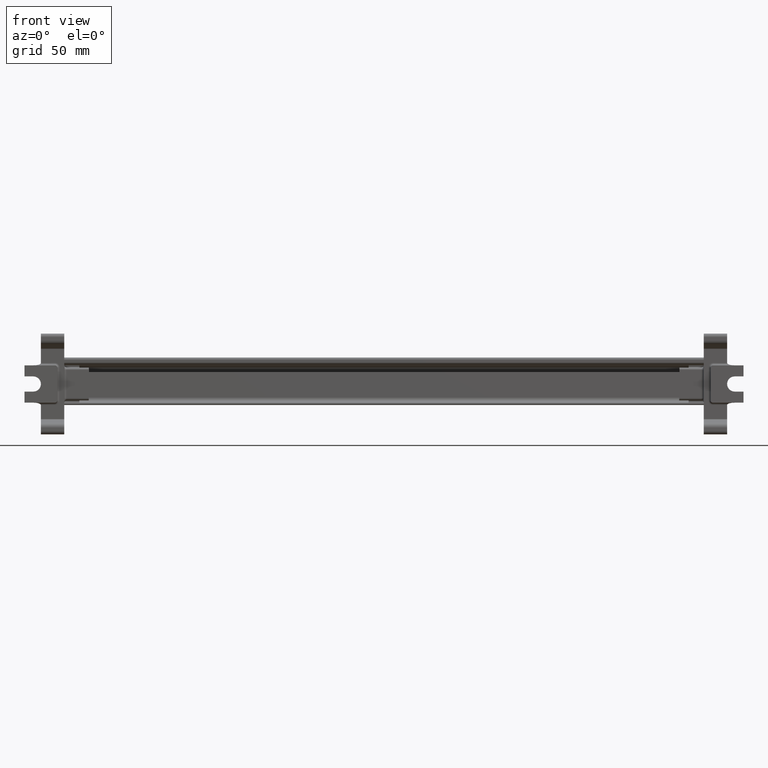
[diagram: clean part render]
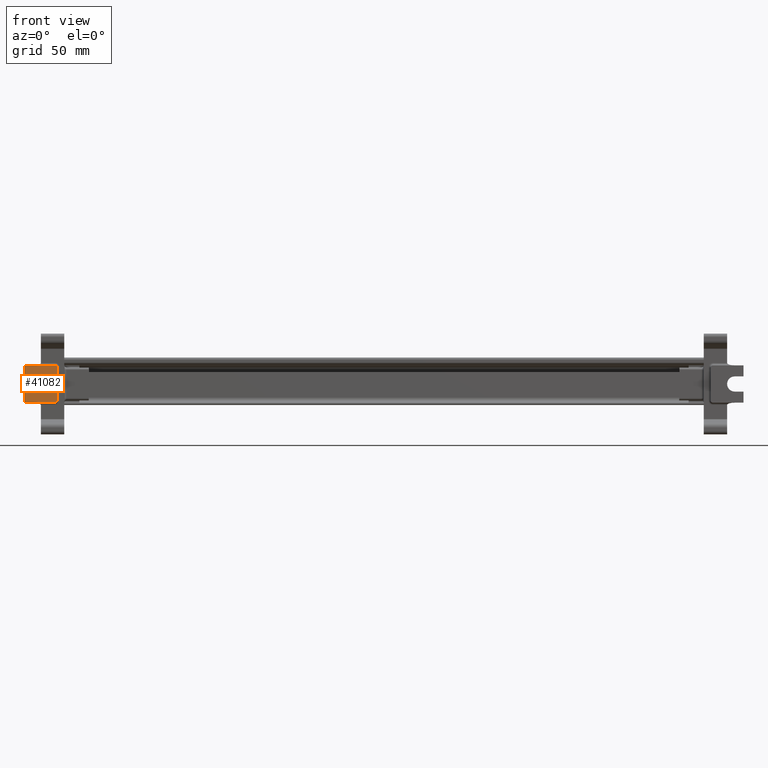
[diagram: same view with one face highlighted and labeled with its STEP entity id]
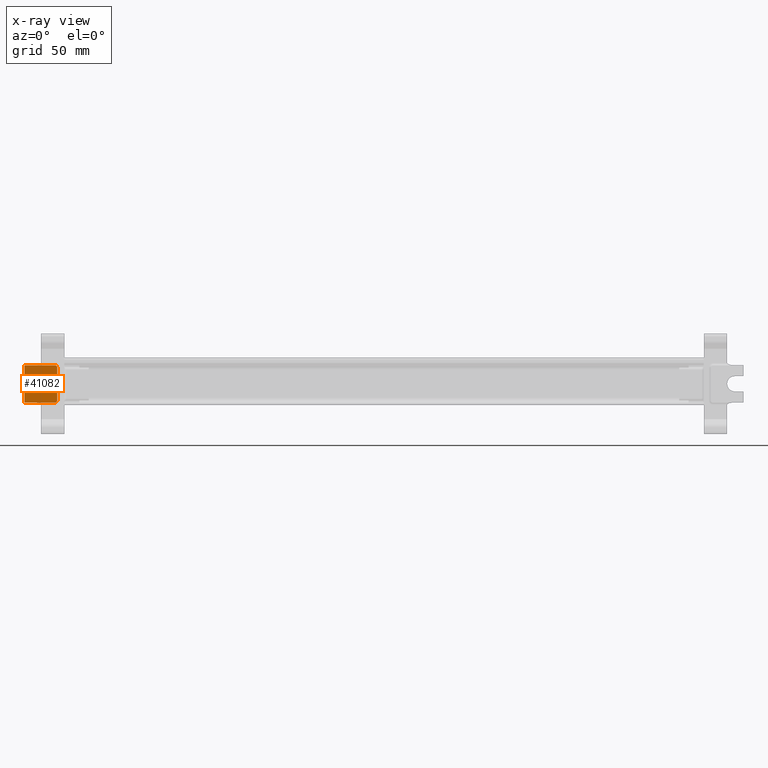
[diagram: x-ray of the same camera — body ghosted, the highlighted face saturated]
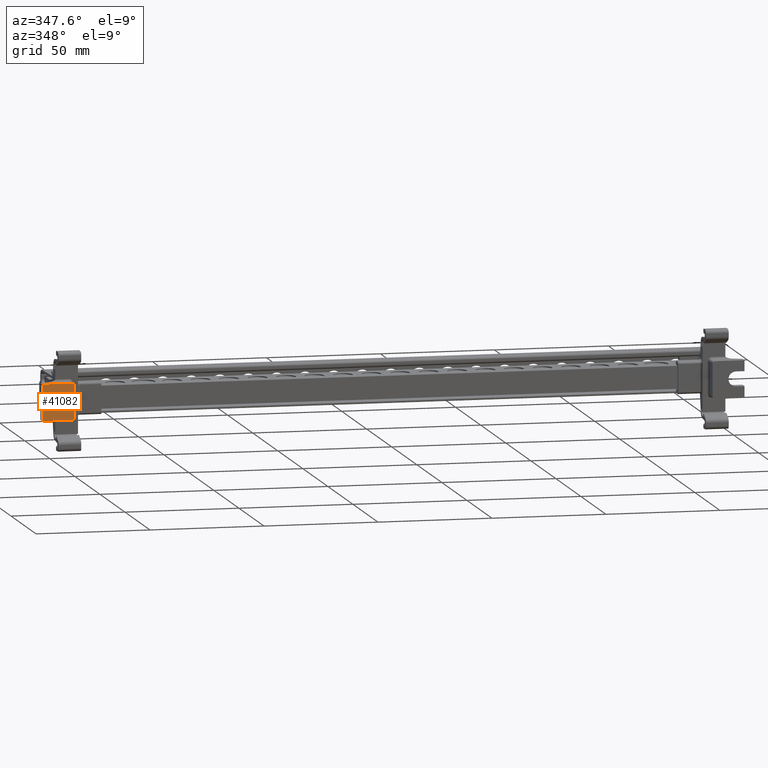
[diagram: same view with one face highlighted and labeled with its STEP entity id]
A machine part, front view. The second image highlights one B-rep face of the part: STEP entity #41082.
The next image is the same camera in x-ray: the body ghosted, the highlighted face saturated — about 0% of this face is hidden behind the body in this view.
A second angle (auxiliary view) of the same face is appended — the face is thin or edge-on in the first view.
In plain terms, the highlighted planar face has unit normal (-0, -1, -0).
Its self-contained STEP definition (entity closure, byte-faithful):
#6001 = VECTOR ( 'NONE', #11090, 1000.000000000000000 ) ;
#6022 = VECTOR ( 'NONE', #10865, 1000.000000000000000 ) ;
#6883 = EDGE_LOOP ( 'NONE', ( #20197, #20144, #20170, #20171, #20130, #20151, #20172, #20148, #20127, #20069, #20161 ) ) ;
#10423 = DIRECTION ( 'NONE',  ( 7.897574987183420400E-015, 1.000000000000000000, 2.740021935547334900E-029 ) ) ;
#10434 = CARTESIAN_POINT ( 'NONE',  ( -222.4602762631160400, 37.74082521647805100, 34.82764998369140100 ) ) ;
#10449 = DIRECTION ( 'NONE',  ( -1.000000000000000000, 6.938893903907222100E-015, 0.0000000000000000000 ) ) ;
#10465 = DIRECTION ( 'NONE',  ( 1.000000000000000000, -7.897574987183420400E-015, 7.022388416726250500E-015 ) ) ;
#10507 = CARTESIAN_POINT ( 'NONE',  ( -242.9526976958242100, 37.74082521647825000, 45.07664888101799500 ) ) ;
#10517 = LINE ( 'NONE', #10434, #28930 ) ;
#10532 = CARTESIAN_POINT ( 'NONE',  ( -222.4602762631161000, 37.74082521647805100, 46.07664888101810200 ) ) ;
#10536 = DIRECTION ( 'NONE',  ( -1.000000000000000000, 8.540177112501270100E-015, 0.0000000000000000000 ) ) ;
#10543 = LINE ( 'NONE', #10545, #28917 ) ;
#10545 = CARTESIAN_POINT ( 'NONE',  ( -222.4602762631161000, 37.74082521647805100, 41.32764998369124500 ) ) ;
#10547 = DIRECTION ( 'NONE',  ( 1.000000000000000000, -7.897574987183420400E-015, 6.325164568388729900E-045 ) ) ;
#10573 = LINE ( 'NONE', #10532, #28910 ) ;
#10600 = DIRECTION ( 'NONE',  ( 7.897574987183420400E-015, 1.000000000000000000, 2.740021935547334900E-029 ) ) ;
#10607 = DIRECTION ( 'NONE',  ( -1.000000000000000000, 7.897574987183420400E-015, -3.511194208363125300E-015 ) ) ;
#10620 = CARTESIAN_POINT ( 'NONE',  ( -252.2026976958242100, 37.74082521647829900, 38.07764998369125200 ) ) ;
#10625 = LINE ( 'NONE', #10634, #29394 ) ;
#10634 = CARTESIAN_POINT ( 'NONE',  ( -241.9526976958243000, 37.74082521647810000, 71.07764998369130200 ) ) ;
#10636 = DIRECTION ( 'NONE',  ( 3.511194208363125300E-015, -2.757782277009340000E-029, -1.000000000000000000 ) ) ;
#10744 = CARTESIAN_POINT ( 'NONE',  ( -242.9526976958242100, 37.74082521647825000, 31.07865108636449800 ) ) ;
#10778 = DIRECTION ( 'NONE',  ( -7.897574987183420400E-015, -1.000000000000000000, 2.709602578543629900E-029 ) ) ;
#10802 = DIRECTION ( 'NONE',  ( -1.000000000000000000, 6.938893903907222100E-015, -6.938893903907222100E-015 ) ) ;
#10838 = LINE ( 'NONE', #10853, #6022 ) ;
#10853 = CARTESIAN_POINT ( 'NONE',  ( -255.9526976958241800, 37.74082521647835600, 30.07865108636445200 ) ) ;
#10865 = DIRECTION ( 'NONE',  ( -3.552941225665730200E-015, 5.515564554018680000E-029, 1.000000000000000000 ) ) ;
#10911 = CARTESIAN_POINT ( 'NONE',  ( -255.9526976958241800, 37.74082521647835600, 46.07664888101800200 ) ) ;
#10932 = DIRECTION ( 'NONE',  ( 3.469447191060520300E-015, 0.0000000000000000000, -1.000000000000000000 ) ) ;
#10935 = LINE ( 'NONE', #10911, #30609 ) ;
#11088 = CARTESIAN_POINT ( 'NONE',  ( -222.4602762631159900, 37.74082521647805100, 30.07865108636455200 ) ) ;
#11090 = DIRECTION ( 'NONE',  ( -1.000000000000000000, 7.897574987183420400E-015, -3.511194208363125300E-015 ) ) ;
#11102 = LINE ( 'NONE', #11088, #6001 ) ;
#11451 = CARTESIAN_POINT ( 'NONE',  ( -222.4602762631161000, 37.74082521647805100, 46.07664888101810200 ) ) ;
#11461 = DIRECTION ( 'NONE',  ( -7.897574987183420400E-015, -1.000000000000000000, -2.740021935547334900E-029 ) ) ;
#11477 = FACE_OUTER_BOUND ( 'NONE', #6883, .T. ) ;
#11478 = DIRECTION ( 'NONE',  ( -1.000000000000000000, 7.897574987183420400E-015, 0.0000000000000000000 ) ) ;
#11480 = PLANE ( 'NONE',  #28658 ) ;
#14975 = CARTESIAN_POINT ( 'NONE',  ( -241.9526976958241800, 37.74082521647810000, 45.07664888101799500 ) ) ;
#15021 = CARTESIAN_POINT ( 'NONE',  ( -255.9526976958241800, 37.74082521647835600, 34.82764998369115300 ) ) ;
#15046 = CARTESIAN_POINT ( 'NONE',  ( -241.9526976958241800, 37.74082521647810000, 31.07865108636449800 ) ) ;
#15092 = CARTESIAN_POINT ( 'NONE',  ( -255.9526976958241800, 37.74082521647835600, 46.07664888101800200 ) ) ;
#15099 = CARTESIAN_POINT ( 'NONE',  ( -242.9526976958242100, 37.74082521647825000, 46.07664888101800200 ) ) ;
#15117 = CARTESIAN_POINT ( 'NONE',  ( -252.2026976958242100, 37.74082521647829900, 41.32764998369124500 ) ) ;
#15125 = CARTESIAN_POINT ( 'NONE',  ( -242.9526976958242100, 37.74082521647825000, 30.07865108636450200 ) ) ;
#15149 = CARTESIAN_POINT ( 'NONE',  ( -255.9526976958241800, 37.74082521647835600, 41.32764998369124500 ) ) ;
#15217 = CARTESIAN_POINT ( 'NONE',  ( -255.9526976958241800, 37.74082521647835600, 30.07865108636445200 ) ) ;
#15370 = CARTESIAN_POINT ( 'NONE',  ( -248.9526976958242100, 37.74082521647827100, 38.07764998369125200 ) ) ;
#15414 = CARTESIAN_POINT ( 'NONE',  ( -252.2026976958242100, 37.74082521647829900, 34.82764998369120200 ) ) ;
#18209 = VERTEX_POINT ( 'NONE', #14975 ) ;
#18221 = VERTEX_POINT ( 'NONE', #15021 ) ;
#18231 = VERTEX_POINT ( 'NONE', #15046 ) ;
#18249 = VERTEX_POINT ( 'NONE', #15117 ) ;
#18269 = VERTEX_POINT ( 'NONE', #15125 ) ;
#18270 = VERTEX_POINT ( 'NONE', #15149 ) ;
#18289 = VERTEX_POINT ( 'NONE', #15099 ) ;
#18295 = VERTEX_POINT ( 'NONE', #15092 ) ;
#18316 = VERTEX_POINT ( 'NONE', #15217 ) ;
#20069 = ORIENTED_EDGE ( 'NONE', *, *, #41219, .F. ) ;
#20127 = ORIENTED_EDGE ( 'NONE', *, *, #41235, .T. ) ;
#20130 = ORIENTED_EDGE ( 'NONE', *, *, #23534, .T. ) ;
#20144 = ORIENTED_EDGE ( 'NONE', *, *, #41246, .T. ) ;
#20148 = ORIENTED_EDGE ( 'NONE', *, *, #41294, .F. ) ;
#20151 = ORIENTED_EDGE ( 'NONE', *, *, #41186, .F. ) ;
#20161 = ORIENTED_EDGE ( 'NONE', *, *, #41193, .F. ) ;
#20170 = ORIENTED_EDGE ( 'NONE', *, *, #41202, .T. ) ;
#20171 = ORIENTED_EDGE ( 'NONE', *, *, #41198, .T. ) ;
#20172 = ORIENTED_EDGE ( 'NONE', *, *, #41251, .F. ) ;
#20197 = ORIENTED_EDGE ( 'NONE', *, *, #41196, .T. ) ;
#21248 = VERTEX_POINT ( 'NONE', #15370 ) ;
#21249 = VERTEX_POINT ( 'NONE', #15414 ) ;
#23534 = EDGE_CURVE ( 'NONE', #21248, #21249, #33592, .T. ) ;
#25957 = DIRECTION ( 'NONE',  ( -1.000000000000000000, 8.540177112501270100E-015, 0.0000000000000000000 ) ) ;
#25973 = DIRECTION ( 'NONE',  ( 7.897574987183420400E-015, 1.000000000000000000, 2.740021935547334900E-029 ) ) ;
#25981 = CARTESIAN_POINT ( 'NONE',  ( -252.2026976958242100, 37.74082521647829900, 38.07764998369125200 ) ) ;
#28658 = AXIS2_PLACEMENT_3D ( 'NONE', #11451, #11461, #11478 ) ;
#28910 = VECTOR ( 'NONE', #10607, 1000.000000000000000 ) ;
#28917 = VECTOR ( 'NONE', #10547, 1000.000000000000000 ) ;
#28920 = CIRCLE ( 'NONE', #28989, 1.000000000000000900 ) ;
#28928 = CIRCLE ( 'NONE', #28951, 3.249999999999975100 ) ;
#28930 = VECTOR ( 'NONE', #10465, 1000.000000000000000 ) ;
#28951 = AXIS2_PLACEMENT_3D ( 'NONE', #10620, #10600, #10536 ) ;
#28954 = CIRCLE ( 'NONE', #28966, 1.000000000000000900 ) ;
#28966 = AXIS2_PLACEMENT_3D ( 'NONE', #10507, #10423, #10449 ) ;
#28989 = AXIS2_PLACEMENT_3D ( 'NONE', #10744, #10778, #10802 ) ;
#29394 = VECTOR ( 'NONE', #10636, 1000.000000000000000 ) ;
#30609 = VECTOR ( 'NONE', #10932, 1000.000000000000000 ) ;
#33592 = CIRCLE ( 'NONE', #33614, 3.249999999999975100 ) ;
#33614 = AXIS2_PLACEMENT_3D ( 'NONE', #25981, #25973, #25957 ) ;
#41082 = ADVANCED_FACE ( 'NONE', ( #11477 ), #11480, .T. ) ;
#41186 = EDGE_CURVE ( 'NONE', #18221, #21249, #10517, .T. ) ;
#41193 = EDGE_CURVE ( 'NONE', #18289, #18209, #28954, .T. ) ;
#41196 = EDGE_CURVE ( 'NONE', #18289, #18295, #10573, .T. ) ;
#41198 = EDGE_CURVE ( 'NONE', #18249, #21248, #28928, .T. ) ;
#41202 = EDGE_CURVE ( 'NONE', #18270, #18249, #10543, .T. ) ;
#41219 = EDGE_CURVE ( 'NONE', #18209, #18231, #10625, .T. ) ;
#41235 = EDGE_CURVE ( 'NONE', #18269, #18231, #28920, .T. ) ;
#41246 = EDGE_CURVE ( 'NONE', #18295, #18270, #10935, .T. ) ;
#41251 = EDGE_CURVE ( 'NONE', #18316, #18221, #10838, .T. ) ;
#41294 = EDGE_CURVE ( 'NONE', #18269, #18316, #11102, .T. ) ;